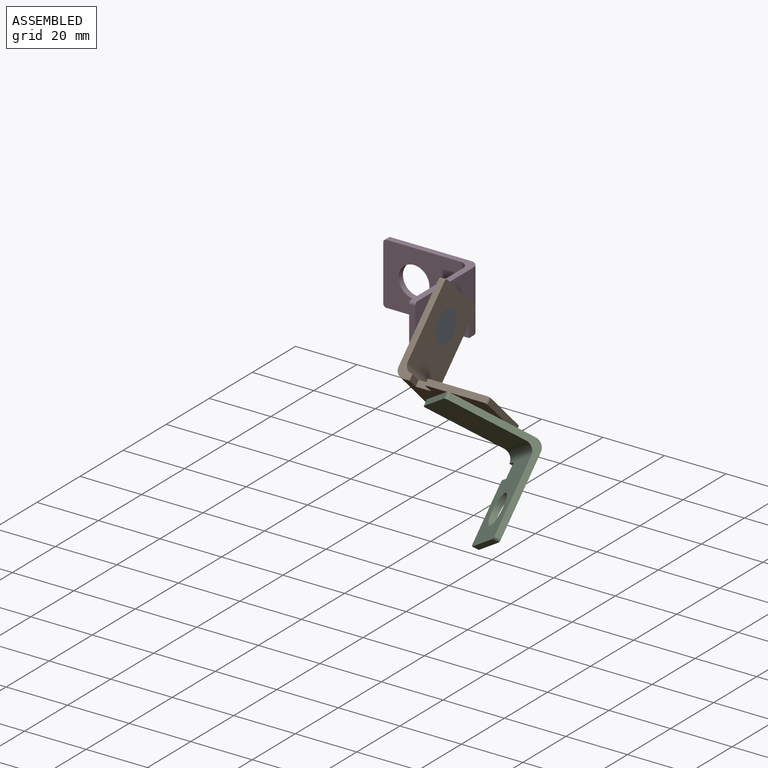
[diagram: assembled view]
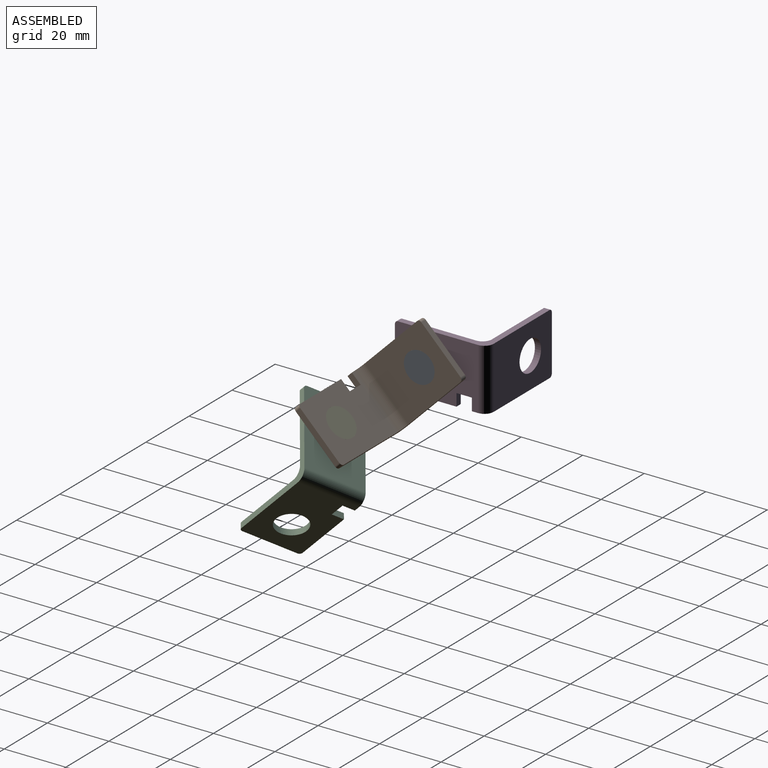
[diagram: assembled view, second angle]
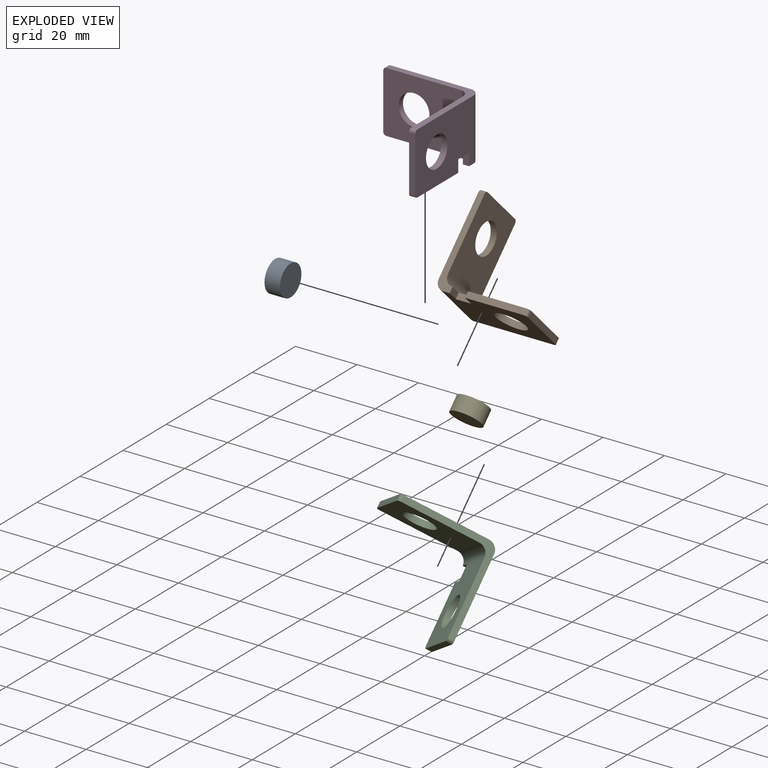
[diagram: exploded view]
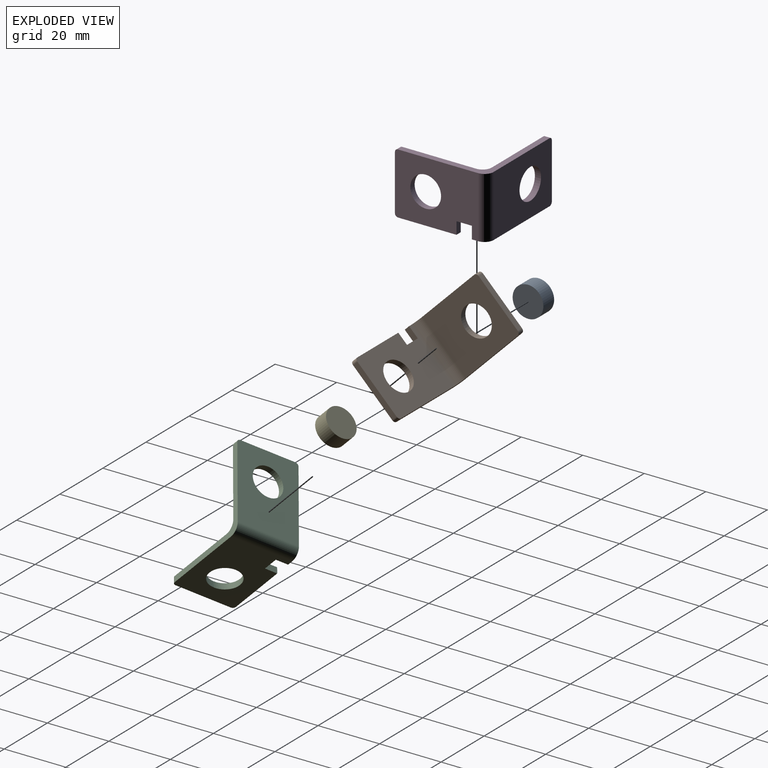
[diagram: exploded view, second angle]
ASSEMBLY  parts=5 mates=4
PART A: 3 faces, bbox 10x10x5 mm
  f0: cylinder r=5mm len=10mm, axis (0,0,-1), area 157.1mm2, adj f1,f2
  f1: plane 10x10mm, normal (0,0,1), area 78.5mm2, adj f0
  f2: plane 10x10mm, normal (0,0,-1), area 78.5mm2, adj f0
PART B: 20 faces, bbox 20x30x30 mm
  f0: plane 29x5mm, normal (1,0,0), area 64mm2, adj f1,f3,f5,f9,f14,f15,f19
  f1: plane 27x20mm, normal (0,1,0), area 441mm2, adj f0,f6,f7,f8,f9,f10,f11,f12
  f2: plane 25x20mm, normal (0,-1,0), area 401mm2, adj f6,f7,f8,f10,f11,f12,f15,f16
  f3: plane 25x20mm, normal (0,0,1), area 421mm2, adj f0,f4,f8,f13,f15,f17,f19
  f4: plane 18x2mm, normal (0,-1,0), area 36mm2, adj f3,f5,f17,f19
  f5: plane 27x20mm, normal (0,0,-1), area 461mm2, adj f0,f4,f8,f13,f14,f17,f19
  f6: plane 18x2mm, normal (0,0,1), area 36mm2, adj f1,f2,f16,f18
  f7: plane 19x2mm, normal (1,0,0), area 38mm2, adj f1,f2,f10,f18
  f8: plane 29x29mm, normal (-1,0,0), area 112mm2, adj f1,f2,f3,f5,f14,f15,f16,f17
  f9: plane 4x2mm, normal (0,0,1), area 8mm2, adj f0,f1,f11,f15
  f10: plane 4x2mm, normal (0,0,-1), area 8mm2, adj f1,f2,f7,f11
  f11: plane 5x2mm, normal (1,0,0), area 10mm2, adj f1,f2,f9,f10
  f12: cylinder r=5mm len=10mm, axis (0,-1,0), area 62.8mm2, adj f1,f2
  f13: cylinder r=5mm len=10mm, axis (0,0,1), area 62.8mm2, adj f3,f5
  f14: cylinder r=3mm len=20mm, axis (-1,0,0), area 94.2mm2, adj f0,f1,f5,f8
  f15: cylinder r=3mm len=20mm, axis (1,0,0), area 94.2mm2, adj f0,f2,f3,f8,f9
  f16: cylinder r=1mm len=2mm, axis (0,-1,0), area 3.1mm2, adj f1,f2,f6,f8
  f17: cylinder r=1mm len=2mm, axis (0,0,-1), area 3.1mm2, adj f3,f4,f5,f8
  f18: cylinder r=1mm len=2mm, axis (0,1,0), area 3.1mm2, adj f1,f2,f6,f7
  f19: cylinder r=1mm len=2mm, axis (0,0,1), area 3.1mm2, adj f0,f3,f4,f5
PART C: same geometry as B
PART D: same geometry as B
PART E: same geometry as A
PLACE A rot(axis=(0,1,0),90deg) t=(28,-20,-10)mm
PLACE B rot(axis=(-0.68,0.28,-0.68),148.6deg) t=(31,-5.86,-10)mm
PLACE C rot(axis=(0.36,0.86,-0.36),163.2deg) t=(51,-44.85,-14.85)mm
PLACE D rot(axis=(0.58,0.58,-0.58),120deg) t=(0,0,0)mm fixed
PLACE E rot(axis=(0.68,0.68,-0.28),148.6deg) t=(51,-32.73,-22.73)mm
MATE fastened E.f0 <-> B.f12  axis (0,0.71,0.71) through (51,-32.73,-22.73)mm
MATE revolute A.f0 <-> B.f13  axis (1,0,0) through (33,-20,-10)mm
MATE fastened A.f0 <-> D.f12  axis (-1,0,0) through (28,-20,-10)mm
MATE revolute E.f0 <-> C.f13  axis (0,-0.71,-0.71) through (51,-36.26,-26.27)mm
